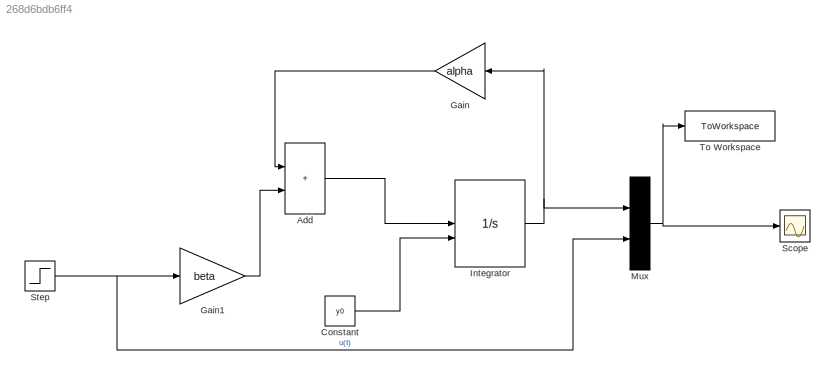
MODEL slx_268d6bdb6ff4
KIND model
CONFIG AbsTol = auto
CONFIG EnableMultiTasking = off
CONFIG FixedStep = auto
CONFIG MaxStep = auto
CONFIG MinStep = auto
CONFIG RelTol = 1e-3
CONFIG SampleTimeConstraint = Unconstrained
CONFIG SolverName = VariableStepAuto
CONFIG StartTime = 0.0
CONFIG StopTime = 2.350
BLOCK [Sum] Add
  IconShape = rectangular
BLOCK [Constant] Constant
  Value = y0
BLOCK [Gain] Gain
  Gain = alpha
BLOCK [Gain] Gain1
  Gain = beta
BLOCK [Integrator] Integrator
  InitialConditionSource = external
BLOCK [Mux] Mux
  DisplayOption = bar
  Inputs = 2
BLOCK [Scope] Scope
  Floating = off
  NumInputPorts = 1
  ScopeSpecificationString = Simulink.scopes.TimeScopeBlockCfg('CurrentConfiguration', extmgr.ConfigurationSet(extmgr.Configuration('Core','General UI',true),extmgr.Configuration('Core','Source UI',true),extmgr.Configuration('Sources','WiredSimulink',true),extmgr.Configuration('Visuals','Time Domain',true,'SerializedDisplays',{struct('MinYLimReal','-0.625','MaxYLimReal','5.625','YLabelReal','','MinYLimMag','0.00000','MaxYLimM...<+1402ch>
BLOCK [Step] Step
  SampleTime = 0
  Time = 0
BLOCK [ToWorkspace] To Workspace
  FixptAsFi = on
  MaxDataPoints = inf
  SampleTime = -1
  SaveFormat = Timeseries
  VariableName = uy
LINE Add:1 -> Integrator:1
LINE Constant:1 -> Integrator:2
LINE Gain1:1 -> Add:2
LINE Gain:1 -> Add:1
NET Integrator:1 -> Gain:1, Mux:1
NET Mux:1 -> Scope:1, To Workspace:1
NET Step:1 -> Gain1:1, Mux:2
note: NET lines group one-source signal fan-out (src -> all destinations, sorted); 1:1 wires keep LINE
